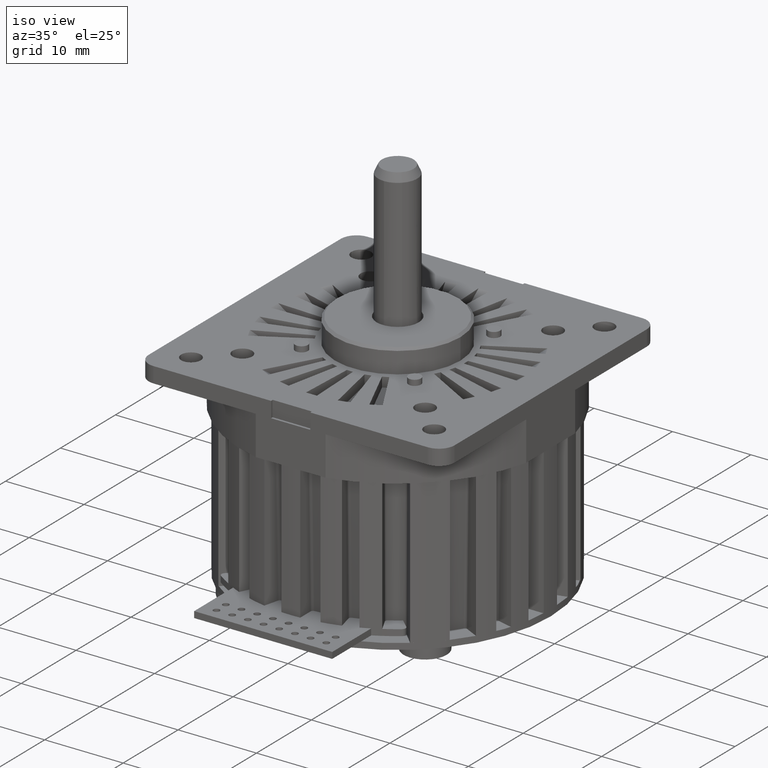
[diagram: clean part render]
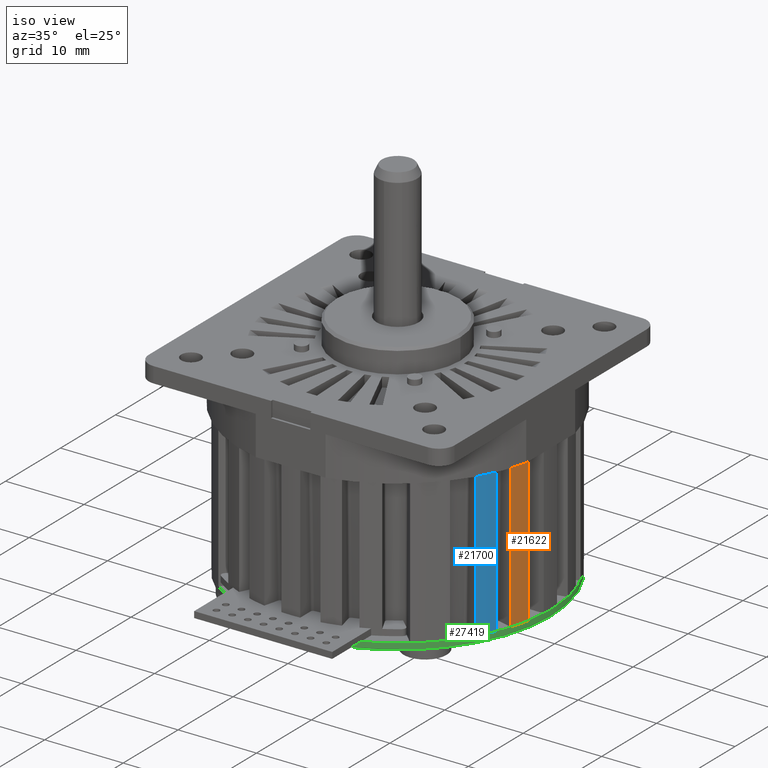
[diagram: same view with three faces highlighted in distinct colors, each labeled with its STEP entity id]
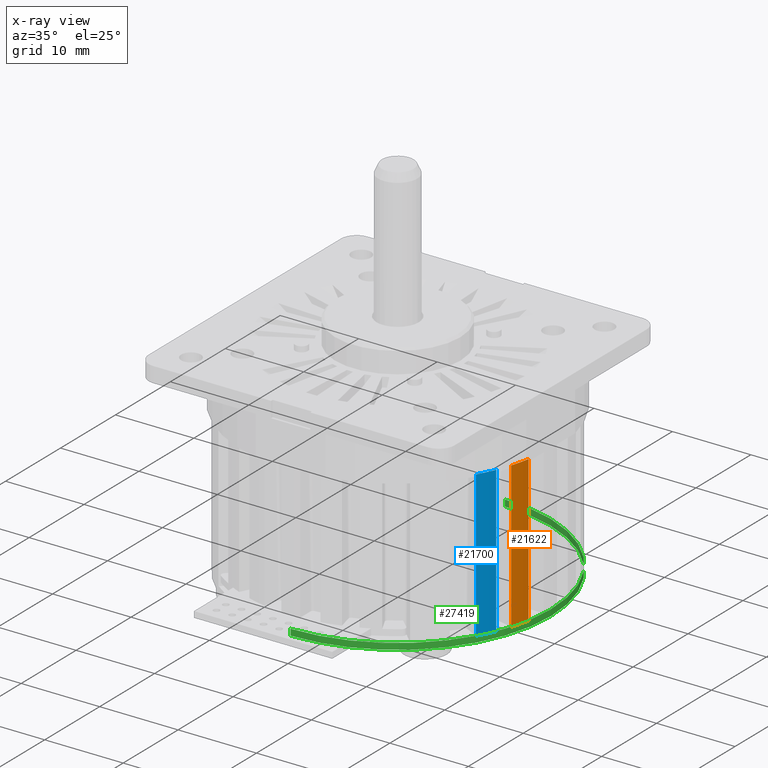
[diagram: x-ray of the same camera — body ghosted, the three highlighted faces saturated]
A machine part, iso view with three faces highlighted in distinct colors.
The next image is the same camera in x-ray (body ghosted, the three faces saturated) — at least one of them is partly hidden behind the body in this view.
Their STEP definitions:

[orange] entity #21622 — the highlighted cylindrical surface (partial cylindrical patch) has radius 19.5 mm, axis along (0, 0, -1).
#10080=CARTESIAN_POINT('',(0.E0,0.E0,-2.36E1));
#10081=DIRECTION('',(0.E0,0.E0,-1.E0));
#10082=DIRECTION('',(9.830255223199E-1,-1.834688596673E-1,0.E0));
#10083=AXIS2_PLACEMENT_3D('',#10080,#10081,#10082);
#12075=CARTESIAN_POINT('',(0.E0,0.E0,-5.E0));
#12076=DIRECTION('',(0.E0,0.E0,1.E0));
#12077=DIRECTION('',(9.530421362540E-1,-3.028377230869E-1,0.E0));
#12078=AXIS2_PLACEMENT_3D('',#12075,#12076,#12077);
#13467=DIRECTION('',(0.E0,0.E0,-1.E0));
#13468=VECTOR('',#13467,1.86E1);
#13469=CARTESIAN_POINT('',(1.858432165695E1,-5.905335600195E0,-5.E0));
#13470=LINE('',#13469,#13468);
#13471=DIRECTION('',(0.E0,0.E0,1.E0));
#13472=VECTOR('',#13471,1.86E1);
#13473=CARTESIAN_POINT('',(1.916899768524E1,-3.577642763512E0,-2.36E1));
#13474=LINE('',#13473,#13472);
#16106=CARTESIAN_POINT('',(1.916899768524E1,-3.577642763512E0,-2.36E1));
#16107=VERTEX_POINT('',#16106);
#16108=CARTESIAN_POINT('',(1.858432165695E1,-5.905335600195E0,-2.36E1));
#16109=VERTEX_POINT('',#16108);
#16593=CARTESIAN_POINT('',(1.858432165695E1,-5.905335600195E0,-5.E0));
#16594=VERTEX_POINT('',#16593);
#16595=CARTESIAN_POINT('',(1.916899768524E1,-3.577642763512E0,-5.E0));
#16596=VERTEX_POINT('',#16595);
#21610=CARTESIAN_POINT('',(0.E0,0.E0,-5.E0));
#21611=DIRECTION('',(0.E0,0.E0,-1.E0));
#21612=DIRECTION('',(-1.E0,0.E0,0.E0));
#21613=AXIS2_PLACEMENT_3D('',#21610,#21611,#21612);
#21614=CYLINDRICAL_SURFACE('',#21613,1.95E1);
#21615=ORIENTED_EDGE('',*,*,#17701,.T.);
#21617=ORIENTED_EDGE('',*,*,#21616,.F.);
#21618=ORIENTED_EDGE('',*,*,#20049,.T.);
#21619=ORIENTED_EDGE('',*,*,#21603,.F.);
#21620=EDGE_LOOP('',(#21615,#21617,#21618,#21619));
#21621=FACE_OUTER_BOUND('',#21620,.F.);
#21622=ADVANCED_FACE('',(#21621),#21614,.T.);
#10084=CIRCLE('',#10083,1.95E1);
#12079=CIRCLE('',#12078,1.95E1);
#17701=EDGE_CURVE('',#16107,#16109,#10084,.T.);
#20049=EDGE_CURVE('',#16594,#16596,#12079,.T.);
#21603=EDGE_CURVE('',#16107,#16596,#13474,.T.);
#21616=EDGE_CURVE('',#16594,#16109,#13470,.T.);

[blue] entity #21700 — the highlighted cylindrical surface (partial cylindrical patch) has radius 19.5 mm, axis along (0, 0, -1).
#10062=CARTESIAN_POINT('',(0.E0,0.E0,-2.36E1));
#10063=DIRECTION('',(0.E0,0.E0,-1.E0));
#10064=DIRECTION('',(9.193285929025E-1,-3.934907092575E-1,0.E0));
#10065=AXIS2_PLACEMENT_3D('',#10062,#10063,#10064);
#12093=CARTESIAN_POINT('',(0.E0,0.E0,-5.E0));
#12094=DIRECTION('',(0.E0,0.E0,1.E0));
#12095=DIRECTION('',(8.640277930728E-1,-5.034441108978E-1,0.E0));
#12096=AXIS2_PLACEMENT_3D('',#12093,#12094,#12095);
#13529=DIRECTION('',(0.E0,0.E0,-1.E0));
#13530=VECTOR('',#13529,1.86E1);
#13531=CARTESIAN_POINT('',(1.684854196492E1,-9.817160162508E0,-5.E0));
#13532=LINE('',#13531,#13530);
#13533=DIRECTION('',(0.E0,0.E0,1.E0));
#13534=VECTOR('',#13533,1.86E1);
#13535=CARTESIAN_POINT('',(1.792690756160E1,-7.673068830521E0,-2.36E1));
#13536=LINE('',#13535,#13534);
#16116=CARTESIAN_POINT('',(1.792690756160E1,-7.673068830521E0,-2.36E1));
#16117=VERTEX_POINT('',#16116);
#16118=CARTESIAN_POINT('',(1.684854196492E1,-9.817160162508E0,-2.36E1));
#16119=VERTEX_POINT('',#16118);
#16583=CARTESIAN_POINT('',(1.684854196492E1,-9.817160162508E0,-5.E0));
#16584=VERTEX_POINT('',#16583);
#16585=CARTESIAN_POINT('',(1.792690756160E1,-7.673068830521E0,-5.E0));
#16586=VERTEX_POINT('',#16585);
#21688=CARTESIAN_POINT('',(0.E0,0.E0,-5.E0));
#21689=DIRECTION('',(0.E0,0.E0,-1.E0));
#21690=DIRECTION('',(-1.E0,0.E0,0.E0));
#21691=AXIS2_PLACEMENT_3D('',#21688,#21689,#21690);
#21692=CYLINDRICAL_SURFACE('',#21691,1.95E1);
#21693=ORIENTED_EDGE('',*,*,#17689,.T.);
#21695=ORIENTED_EDGE('',*,*,#21694,.F.);
#21696=ORIENTED_EDGE('',*,*,#20061,.T.);
#21697=ORIENTED_EDGE('',*,*,#21681,.F.);
#21698=EDGE_LOOP('',(#21693,#21695,#21696,#21697));
#21699=FACE_OUTER_BOUND('',#21698,.F.);
#21700=ADVANCED_FACE('',(#21699),#21692,.T.);
#10066=CIRCLE('',#10065,1.95E1);
#12097=CIRCLE('',#12096,1.95E1);
#17689=EDGE_CURVE('',#16117,#16119,#10066,.T.);
#20061=EDGE_CURVE('',#16584,#16586,#12097,.T.);
#21681=EDGE_CURVE('',#16117,#16586,#13536,.T.);
#21694=EDGE_CURVE('',#16584,#16119,#13532,.T.);

[green] entity #27419 — the highlighted cylindrical surface (partial cylindrical patch) has radius 19.5 mm, axis along (0, 0, 1).
#25531=CARTESIAN_POINT('',(0.E0,8.E-1,0.E0));
#25532=DIRECTION('',(0.E0,1.E0,0.E0));
#25533=DIRECTION('',(0.E0,0.E0,1.E0));
#25534=AXIS2_PLACEMENT_3D('',#25531,#25532,#25533);
#25782=DIRECTION('',(0.E0,1.E0,0.E0));
#25783=VECTOR('',#25782,8.E-1);
#25784=CARTESIAN_POINT('',(0.E0,0.E0,1.95E1));
#25785=LINE('',#25784,#25783);
#25786=DIRECTION('',(0.E0,1.E0,0.E0));
#25787=VECTOR('',#25786,8.E-1);
#25788=CARTESIAN_POINT('',(0.E0,0.E0,-1.95E1));
#25789=LINE('',#25788,#25787);
#25795=CARTESIAN_POINT('',(0.E0,0.E0,0.E0));
#25796=DIRECTION('',(0.E0,-1.E0,0.E0));
#25797=DIRECTION('',(0.E0,0.E0,-1.E0));
#25798=AXIS2_PLACEMENT_3D('',#25795,#25796,#25797);
#27026=CARTESIAN_POINT('',(0.E0,0.E0,-1.95E1));
#27027=CARTESIAN_POINT('',(0.E0,0.E0,1.95E1));
#27028=VERTEX_POINT('',#27026);
#27029=VERTEX_POINT('',#27027);
#27046=CARTESIAN_POINT('',(0.E0,8.E-1,1.95E1));
#27047=VERTEX_POINT('',#27046);
#27048=CARTESIAN_POINT('',(0.E0,8.E-1,-1.95E1));
#27049=VERTEX_POINT('',#27048);
#27407=CARTESIAN_POINT('',(0.E0,8.E-1,0.E0));
#27408=DIRECTION('',(0.E0,-1.E0,0.E0));
#27409=DIRECTION('',(0.E0,0.E0,-1.E0));
#27410=AXIS2_PLACEMENT_3D('',#27407,#27408,#27409);
#27411=CYLINDRICAL_SURFACE('',#27410,1.95E1);
#27412=ORIENTED_EDGE('',*,*,#27255,.T.);
#27413=ORIENTED_EDGE('',*,*,#27401,.F.);
#27415=ORIENTED_EDGE('',*,*,#27414,.T.);
#27416=ORIENTED_EDGE('',*,*,#27397,.T.);
#27417=EDGE_LOOP('',(#27412,#27413,#27415,#27416));
#27418=FACE_OUTER_BOUND('',#27417,.F.);
#27419=ADVANCED_FACE('',(#27418),#27411,.T.);
#25535=CIRCLE('',#25534,1.95E1);
#25799=CIRCLE('',#25798,1.95E1);
#27255=EDGE_CURVE('',#27047,#27049,#25535,.T.);
#27397=EDGE_CURVE('',#27029,#27047,#25785,.T.);
#27401=EDGE_CURVE('',#27028,#27049,#25789,.T.);
#27414=EDGE_CURVE('',#27028,#27029,#25799,.T.);